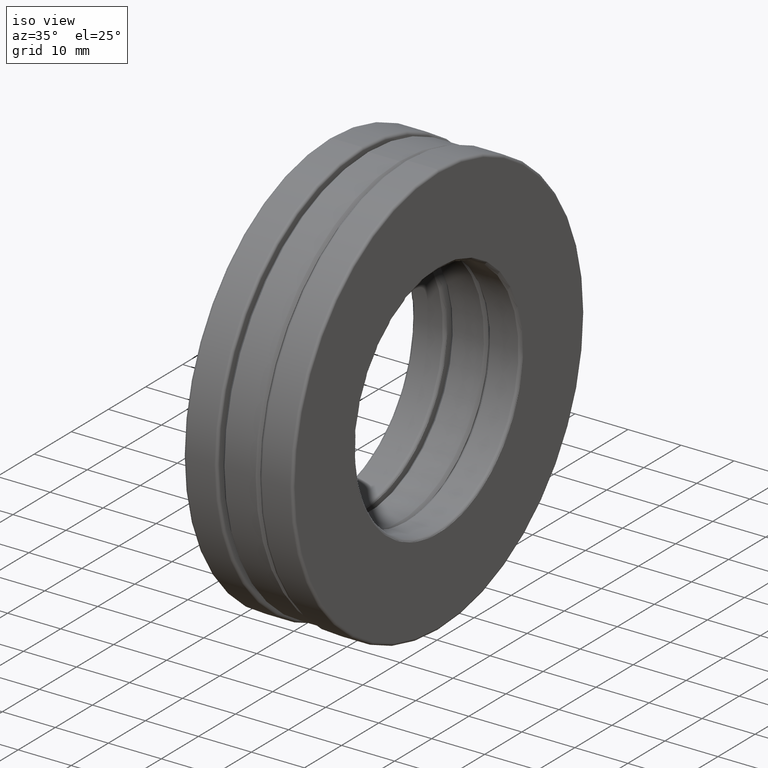
[diagram: clean part render]
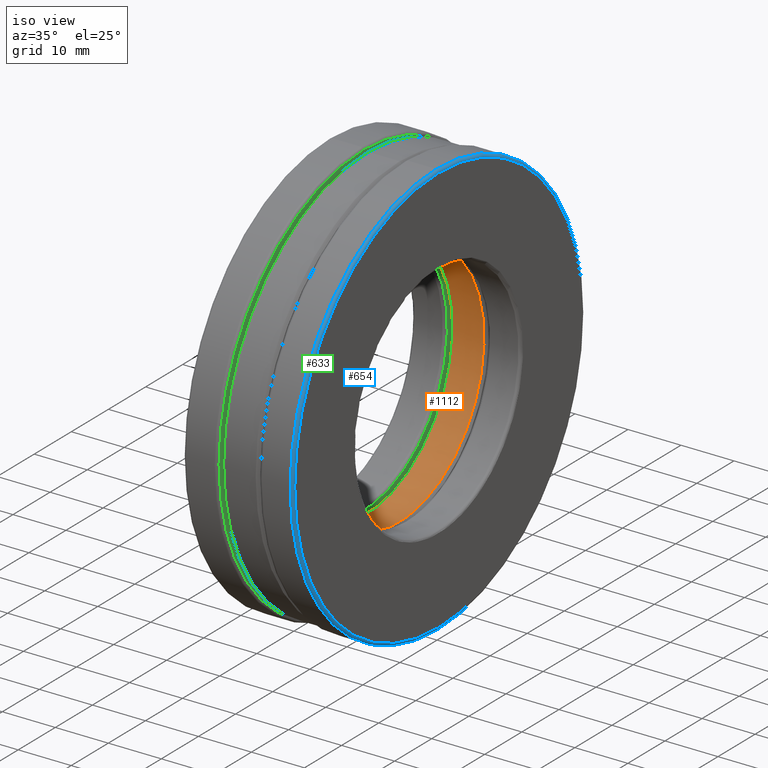
[diagram: same view with three faces highlighted in distinct colors, each labeled with its STEP entity id]
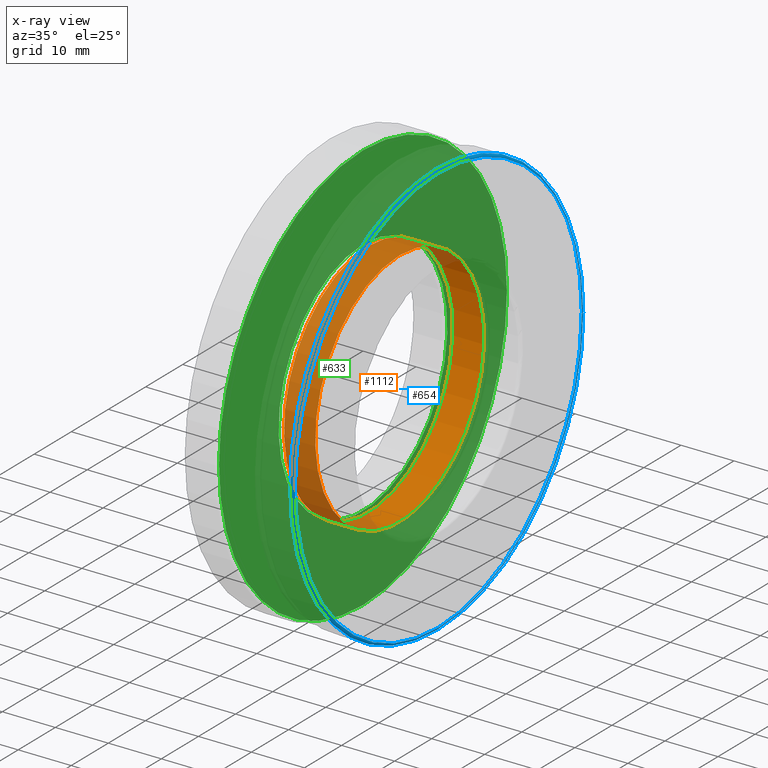
[diagram: x-ray of the same camera — body ghosted, the three highlighted faces saturated]
A machine part, iso view with three faces highlighted in distinct colors.
The next image is the same camera in x-ray (body ghosted, the three faces saturated) — at least one of them is partly hidden behind the body in this view.
Their STEP definitions:

[orange] entity #1112 — the highlighted cylindrical surface (bore or boss wall) has radius 22.733 mm, axis along (-1, -0, -0).
#30 = VERTEX_POINT ( 'NONE', #1015 ) ;
#166 = CARTESIAN_POINT ( 'NONE',  ( -0.1159999999999999400, 0.0000000000000000000, 0.0000000000000000000 ) ) ;
#167 = DIRECTION ( 'NONE',  ( -1.000000000000000000, -0.0000000000000000000, -0.0000000000000000000 ) ) ;
#168 = AXIS2_PLACEMENT_3D ( 'NONE', #759, #430, #1001 ) ;
#188 = AXIS2_PLACEMENT_3D ( 'NONE', #973, #167, #724 ) ;
#266 = EDGE_CURVE ( 'NONE', #30, #30, #827, .T. ) ;
#430 = DIRECTION ( 'NONE',  ( -1.000000000000000000, -0.0000000000000000000, -0.0000000000000000000 ) ) ;
#569 = FACE_OUTER_BOUND ( 'NONE', #765, .T. ) ;
#724 = DIRECTION ( 'NONE',  ( 0.0000000000000000000, 0.0000000000000000000, 1.000000000000000000 ) ) ;
#728 = FACE_OUTER_BOUND ( 'NONE', #1189, .T. ) ;
#759 = CARTESIAN_POINT ( 'NONE',  ( 0.1160000000000000800, 0.0000000000000000000, 0.0000000000000000000 ) ) ;
#765 = EDGE_LOOP ( 'NONE', ( #1459 ) ) ;
#782 = CARTESIAN_POINT ( 'NONE',  ( -0.1159999999999999400, 0.0000000000000000000, 0.8950000000000000200 ) ) ;
#827 = CIRCLE ( 'NONE', #168, 0.8950000000000000200 ) ;
#901 = AXIS2_PLACEMENT_3D ( 'NONE', #166, #1037, #1333 ) ;
#939 = VERTEX_POINT ( 'NONE', #782 ) ;
#973 = CARTESIAN_POINT ( 'NONE',  ( 0.0000000000000000000, 0.0000000000000000000, 0.0000000000000000000 ) ) ;
#999 = EDGE_CURVE ( 'NONE', #939, #939, #1052, .T. ) ;
#1001 = DIRECTION ( 'NONE',  ( 0.0000000000000000000, 0.0000000000000000000, 1.000000000000000000 ) ) ;
#1015 = CARTESIAN_POINT ( 'NONE',  ( 0.1160000000000000800, 0.0000000000000000000, 0.8950000000000000200 ) ) ;
#1037 = DIRECTION ( 'NONE',  ( -1.000000000000000000, -0.0000000000000000000, -0.0000000000000000000 ) ) ;
#1052 = CIRCLE ( 'NONE', #901, 0.8950000000000000200 ) ;
#1112 = ADVANCED_FACE ( 'NONE', ( #728, #569 ), #1162, .F. ) ;
#1162 = CYLINDRICAL_SURFACE ( 'NONE', #188, 0.8950000000000000200 ) ;
#1189 = EDGE_LOOP ( 'NONE', ( #1301 ) ) ;
#1301 = ORIENTED_EDGE ( 'NONE', *, *, #266, .F. ) ;
#1333 = DIRECTION ( 'NONE',  ( 0.0000000000000000000, 0.0000000000000000000, 1.000000000000000000 ) ) ;
#1459 = ORIENTED_EDGE ( 'NONE', *, *, #999, .T. ) ;

[blue] entity #654 — the highlighted toroidal blend (fillet) surface has major radius 38.7826 mm and minor (blend) radius 0.508 mm.
#38 = AXIS2_PLACEMENT_3D ( 'NONE', #969, #1083, #1194 ) ;
#136 = TOROIDAL_SURFACE ( 'NONE', #38, 1.526875000000000600, 0.01999999999999961500 ) ;
#200 = AXIS2_PLACEMENT_3D ( 'NONE', #256, #1267, #799 ) ;
#256 = CARTESIAN_POINT ( 'NONE',  ( 0.3860000000000004000, 0.0000000000000000000, 0.0000000000000000000 ) ) ;
#446 = CARTESIAN_POINT ( 'NONE',  ( 0.4060000000000001400, 0.0000000000000000000, 1.526875000000000600 ) ) ;
#631 = CIRCLE ( 'NONE', #1232, 1.526875000000000600 ) ;
#654 = ADVANCED_FACE ( 'NONE', ( #1026, #722 ), #136, .T. ) ;
#722 = FACE_OUTER_BOUND ( 'NONE', #1034, .T. ) ;
#738 = DIRECTION ( 'NONE',  ( 0.0000000000000000000, 0.0000000000000000000, 1.000000000000000000 ) ) ;
#749 = EDGE_CURVE ( 'NONE', #1198, #1198, #1303, .T. ) ;
#774 = ORIENTED_EDGE ( 'NONE', *, *, #1147, .T. ) ;
#799 = DIRECTION ( 'NONE',  ( 0.0000000000000000000, 0.0000000000000000000, 1.000000000000000000 ) ) ;
#814 = ORIENTED_EDGE ( 'NONE', *, *, #749, .F. ) ;
#863 = DIRECTION ( 'NONE',  ( -1.000000000000000000, -0.0000000000000000000, -0.0000000000000000000 ) ) ;
#904 = VERTEX_POINT ( 'NONE', #446 ) ;
#969 = CARTESIAN_POINT ( 'NONE',  ( 0.3860000000000004000, 0.0000000000000000000, 0.0000000000000000000 ) ) ;
#1003 = CARTESIAN_POINT ( 'NONE',  ( 0.3860000000000004000, 0.0000000000000000000, 1.546875000000000200 ) ) ;
#1026 = FACE_OUTER_BOUND ( 'NONE', #1422, .T. ) ;
#1034 = EDGE_LOOP ( 'NONE', ( #774 ) ) ;
#1083 = DIRECTION ( 'NONE',  ( -1.000000000000000000, -0.0000000000000000000, -0.0000000000000000000 ) ) ;
#1147 = EDGE_CURVE ( 'NONE', #904, #904, #631, .T. ) ;
#1194 = DIRECTION ( 'NONE',  ( 0.0000000000000000000, 0.0000000000000000000, 1.000000000000000000 ) ) ;
#1198 = VERTEX_POINT ( 'NONE', #1003 ) ;
#1232 = AXIS2_PLACEMENT_3D ( 'NONE', #1425, #863, #738 ) ;
#1267 = DIRECTION ( 'NONE',  ( -1.000000000000000000, -0.0000000000000000000, -0.0000000000000000000 ) ) ;
#1303 = CIRCLE ( 'NONE', #200, 1.546875000000000200 ) ;
#1422 = EDGE_LOOP ( 'NONE', ( #814 ) ) ;
#1425 = CARTESIAN_POINT ( 'NONE',  ( 0.4060000000000001400, 0.0000000000000000000, 0.0000000000000000000 ) ) ;

[green] entity #633 — the highlighted planar face has unit normal (1, 0, 0).
#70 = AXIS2_PLACEMENT_3D ( 'NONE', #726, #1188, #638 ) ;
#115 = CARTESIAN_POINT ( 'NONE',  ( -0.1560000000000000000, 0.0000000000000000000, 0.0000000000000000000 ) ) ;
#302 = PLANE ( 'NONE',  #70 ) ;
#377 = ORIENTED_EDGE ( 'NONE', *, *, #830, .F. ) ;
#412 = EDGE_LOOP ( 'NONE', ( #377 ) ) ;
#434 = CARTESIAN_POINT ( 'NONE',  ( -0.1559999999999999400, 0.0000000000000000000, 1.526875000000000400 ) ) ;
#448 = AXIS2_PLACEMENT_3D ( 'NONE', #115, #887, #1012 ) ;
#453 = FACE_BOUND ( 'NONE', #497, .T. ) ;
#497 = EDGE_LOOP ( 'NONE', ( #914 ) ) ;
#554 = DIRECTION ( 'NONE',  ( -1.000000000000000000, -0.0000000000000000000, -0.0000000000000000000 ) ) ;
#563 = EDGE_CURVE ( 'NONE', #1091, #1091, #746, .T. ) ;
#583 = FACE_OUTER_BOUND ( 'NONE', #412, .T. ) ;
#633 = ADVANCED_FACE ( 'NONE', ( #453, #583 ), #302, .T. ) ;
#638 = DIRECTION ( 'NONE',  ( 0.0000000000000000000, 0.0000000000000000000, -1.000000000000000000 ) ) ;
#726 = CARTESIAN_POINT ( 'NONE',  ( -0.1560000000000000000, 8.430628823177544700E-018, 0.0000000000000000000 ) ) ;
#746 = CIRCLE ( 'NONE', #448, 0.8950000000000000200 ) ;
#830 = EDGE_CURVE ( 'NONE', #1009, #1009, #1427, .T. ) ;
#887 = DIRECTION ( 'NONE',  ( -1.000000000000000000, -0.0000000000000000000, -0.0000000000000000000 ) ) ;
#914 = ORIENTED_EDGE ( 'NONE', *, *, #563, .T. ) ;
#1006 = DIRECTION ( 'NONE',  ( 0.0000000000000000000, 0.0000000000000000000, 1.000000000000000000 ) ) ;
#1009 = VERTEX_POINT ( 'NONE', #434 ) ;
#1012 = DIRECTION ( 'NONE',  ( 0.0000000000000000000, 0.0000000000000000000, 1.000000000000000000 ) ) ;
#1091 = VERTEX_POINT ( 'NONE', #1115 ) ;
#1115 = CARTESIAN_POINT ( 'NONE',  ( -0.1560000000000000000, 0.0000000000000000000, 0.8950000000000000200 ) ) ;
#1188 = DIRECTION ( 'NONE',  ( 1.000000000000000000, 0.0000000000000000000, 0.0000000000000000000 ) ) ;
#1338 = CARTESIAN_POINT ( 'NONE',  ( -0.1559999999999999400, 0.0000000000000000000, 0.0000000000000000000 ) ) ;
#1385 = AXIS2_PLACEMENT_3D ( 'NONE', #1338, #554, #1006 ) ;
#1427 = CIRCLE ( 'NONE', #1385, 1.526875000000000400 ) ;